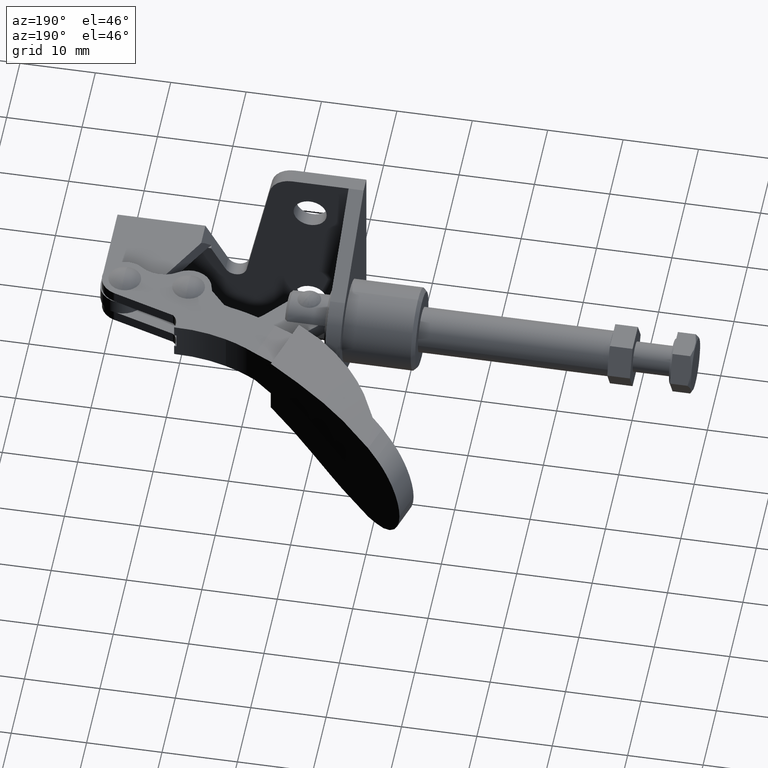
[diagram: clean part render]
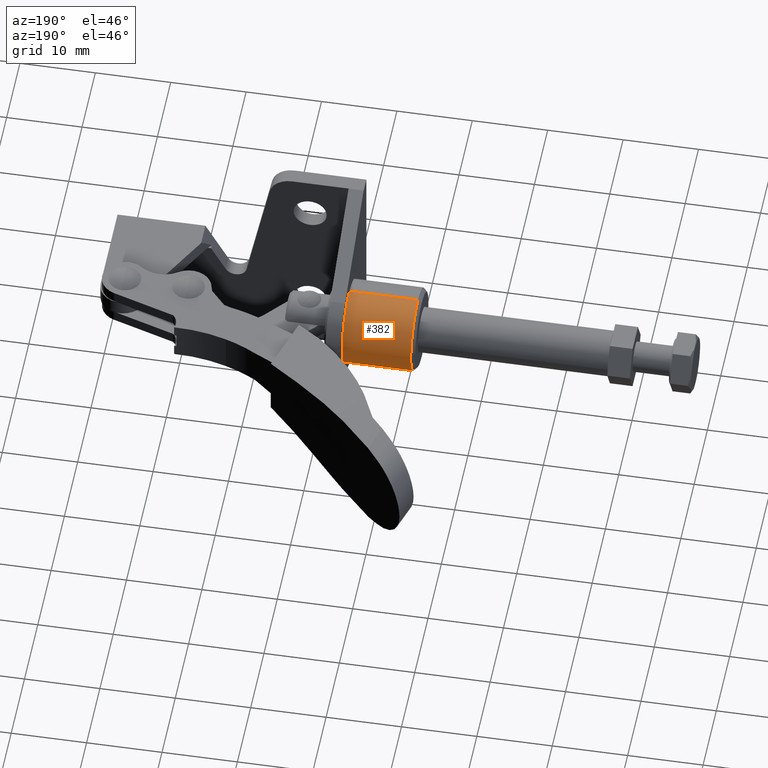
[diagram: same view with one face highlighted and labeled with its STEP entity id]
A machine part, auxiliary view. The second image highlights one B-rep face of the part: STEP entity #382.
In plain terms, the highlighted cylindrical surface (partial cylindrical patch) has radius 5.5 mm, axis along (-1, -0, -0).
Its self-contained STEP definition (entity closure, byte-faithful):
#40 = VERTEX_POINT ( 'NONE', #3199 ) ;
#238 = CARTESIAN_POINT ( 'NONE',  ( -42.60000000000003700, 12.69999999999994400, 18.99999999999992900 ) ) ;
#309 = EDGE_CURVE ( 'NONE', #641, #40, #791, .T. ) ;
#382 = ADVANCED_FACE ( 'NONE', ( #4315 ), #1625, .T. ) ;
#478 = DIRECTION ( 'NONE',  ( -1.000000000000000000, 0.0000000000000000000, 0.0000000000000000000 ) ) ;
#641 = VERTEX_POINT ( 'NONE', #5022 ) ;
#712 = EDGE_CURVE ( 'NONE', #4829, #2630, #2204, .T. ) ;
#753 = CARTESIAN_POINT ( 'NONE',  ( -33.00000000000003600, 12.69999999999994400, 13.49999999999995900 ) ) ;
#765 = VECTOR ( 'NONE', #4061, 1000.000000000000000 ) ;
#791 = CIRCLE ( 'NONE', #6225, 5.499999999999969800 ) ;
#830 = EDGE_CURVE ( 'NONE', #40, #2630, #2582, .T. ) ;
#984 = DIRECTION ( 'NONE',  ( 0.0000000000000000000, 0.0000000000000000000, 1.000000000000000000 ) ) ;
#1279 = AXIS2_PLACEMENT_3D ( 'NONE', #6021, #3870, #984 ) ;
#1303 = DIRECTION ( 'NONE',  ( -1.000000000000000000, -0.0000000000000000000, -0.0000000000000000000 ) ) ;
#1345 = DIRECTION ( 'NONE',  ( -1.000000000000000000, -0.0000000000000000000, -0.0000000000000000000 ) ) ;
#1547 = ORIENTED_EDGE ( 'NONE', *, *, #712, .F. ) ;
#1594 = CARTESIAN_POINT ( 'NONE',  ( -42.60000000000003700, 12.69999999999994400, 7.999999999999989300 ) ) ;
#1625 = CYLINDRICAL_SURFACE ( 'NONE', #1279, 5.499999999999969800 ) ;
#1683 = ORIENTED_EDGE ( 'NONE', *, *, #309, .T. ) ;
#1878 = EDGE_CURVE ( 'NONE', #641, #4829, #2182, .T. ) ;
#2182 = LINE ( 'NONE', #238, #765 ) ;
#2204 = CIRCLE ( 'NONE', #2762, 5.499999999999969800 ) ;
#2278 = ORIENTED_EDGE ( 'NONE', *, *, #1878, .F. ) ;
#2582 = LINE ( 'NONE', #1594, #5001 ) ;
#2630 = VERTEX_POINT ( 'NONE', #6101 ) ;
#2762 = AXIS2_PLACEMENT_3D ( 'NONE', #3127, #1345, #6175 ) ;
#3082 = CARTESIAN_POINT ( 'NONE',  ( -42.10000000000003000, 12.69999999999994400, 18.99999999999992900 ) ) ;
#3127 = CARTESIAN_POINT ( 'NONE',  ( -42.10000000000003000, 12.69999999999994400, 13.49999999999995900 ) ) ;
#3199 = CARTESIAN_POINT ( 'NONE',  ( -33.00000000000003600, 12.69999999999994400, 7.999999999999989300 ) ) ;
#3821 = DIRECTION ( 'NONE',  ( 0.0000000000000000000, 0.0000000000000000000, 1.000000000000000000 ) ) ;
#3870 = DIRECTION ( 'NONE',  ( -1.000000000000000000, -0.0000000000000000000, -0.0000000000000000000 ) ) ;
#4038 = ORIENTED_EDGE ( 'NONE', *, *, #830, .T. ) ;
#4061 = DIRECTION ( 'NONE',  ( -1.000000000000000000, -0.0000000000000000000, -0.0000000000000000000 ) ) ;
#4315 = FACE_OUTER_BOUND ( 'NONE', #6198, .T. ) ;
#4829 = VERTEX_POINT ( 'NONE', #3082 ) ;
#5001 = VECTOR ( 'NONE', #1303, 1000.000000000000000 ) ;
#5022 = CARTESIAN_POINT ( 'NONE',  ( -33.00000000000003600, 12.69999999999994400, 18.99999999999992900 ) ) ;
#6021 = CARTESIAN_POINT ( 'NONE',  ( -42.60000000000003700, 12.69999999999994400, 13.49999999999995900 ) ) ;
#6101 = CARTESIAN_POINT ( 'NONE',  ( -42.10000000000003000, 12.69999999999994400, 7.999999999999989300 ) ) ;
#6175 = DIRECTION ( 'NONE',  ( 0.0000000000000000000, 0.0000000000000000000, 1.000000000000000000 ) ) ;
#6198 = EDGE_LOOP ( 'NONE', ( #1683, #4038, #1547, #2278 ) ) ;
#6225 = AXIS2_PLACEMENT_3D ( 'NONE', #753, #478, #3821 ) ;